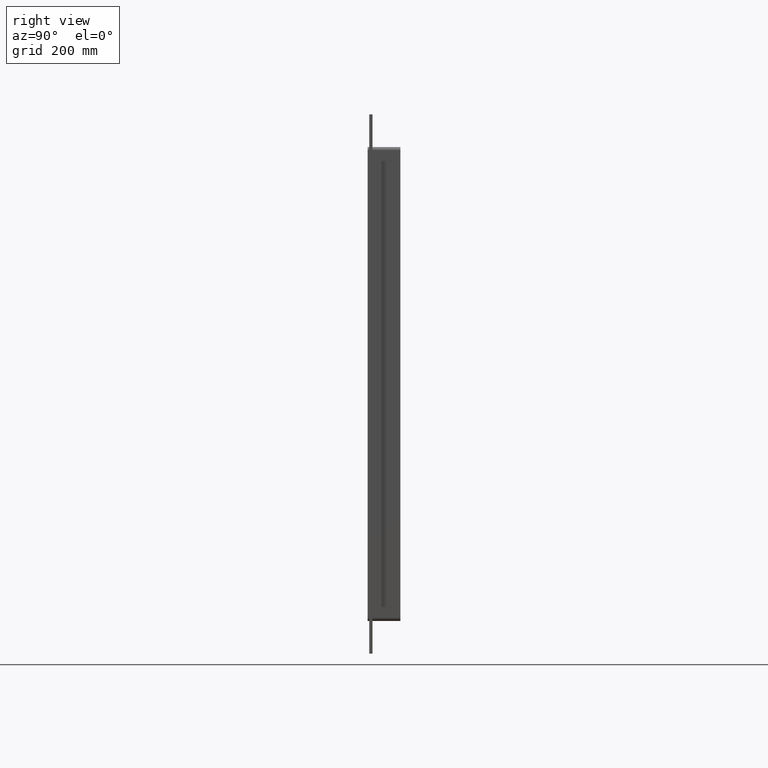
[diagram: clean part render]
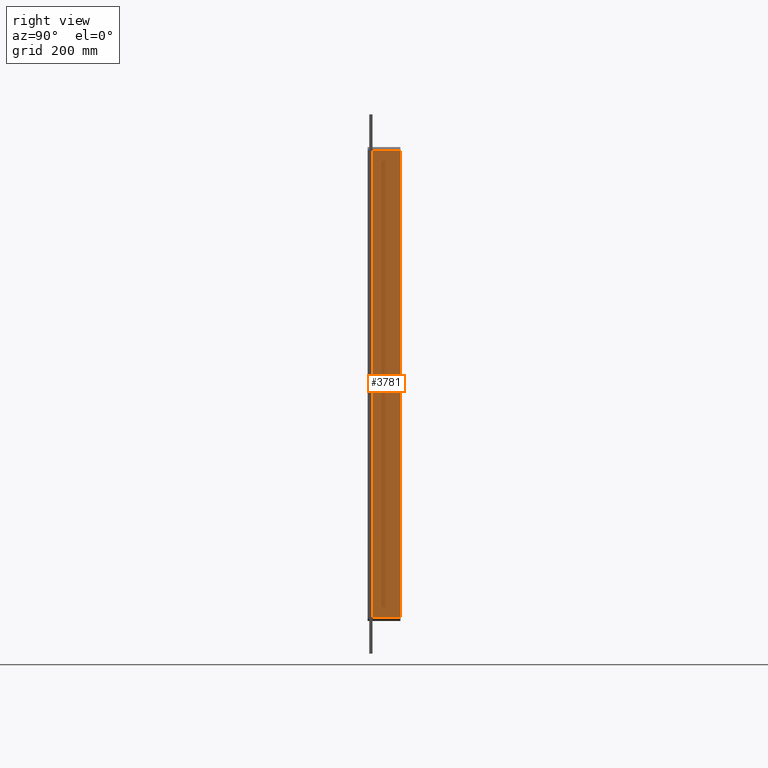
[diagram: same view with one face highlighted and labeled with its STEP entity id]
A machine part, right view. The second image highlights one B-rep face of the part: STEP entity #3781.
In plain terms, the highlighted planar face has unit normal (1, 0, 0).
Its self-contained STEP definition (entity closure, byte-faithful):
#1605=CARTESIAN_POINT('',(392.50000000000011,57.0,-429.0));
#1606=VERTEX_POINT('',#1605);
#1656=CARTESIAN_POINT('',(392.50000000000011,57.0,429.00000000000006));
#1657=VERTEX_POINT('',#1656);
#1665=CARTESIAN_POINT('',(392.50000000000011,57.0,429.00000000000006));
#1666=DIRECTION('',(0.0,0.0,-1.0));
#1667=VECTOR('',#1666,858.0);
#1668=LINE('',#1665,#1667);
#1669=EDGE_CURVE('',#1657,#1606,#1668,.T.);
#3396=CARTESIAN_POINT('',(392.50000000000011,6.000000000000001,-429.00000000000006));
#3397=VERTEX_POINT('',#3396);
#3405=CARTESIAN_POINT('',(392.50000000000011,6.000000000000001,429.00000000000006));
#3406=VERTEX_POINT('',#3405);
#3407=CARTESIAN_POINT('',(392.50000000000011,6.000000000000001,429.00000000000006));
#3408=DIRECTION('',(0.0,0.0,-1.0));
#3409=VECTOR('',#3408,858.0);
#3410=LINE('',#3407,#3409);
#3411=EDGE_CURVE('',#3406,#3397,#3410,.T.);
#3732=CARTESIAN_POINT('',(392.50000000000011,6.000000000000001,429.00000000000006));
#3733=DIRECTION('',(0.0,1.0,0.0));
#3734=VECTOR('',#3733,51.0);
#3735=LINE('',#3732,#3734);
#3736=EDGE_CURVE('',#3406,#1657,#3735,.T.);
#3765=CARTESIAN_POINT('',(392.50000000000011,0.0,435.00000000000006));
#3766=DIRECTION('',(1.0,0.0,0.0));
#3767=DIRECTION('',(0.0,0.0,-1.0));
#3768=AXIS2_PLACEMENT_3D('',#3765,#3766,#3767);
#3769=PLANE('',#3768);
#3770=ORIENTED_EDGE('',*,*,#3411,.T.);
#3771=CARTESIAN_POINT('',(392.50000000000011,57.0,-429.00000000000006));
#3772=DIRECTION('',(0.0,-1.0,0.0));
#3773=VECTOR('',#3772,51.0);
#3774=LINE('',#3771,#3773);
#3775=EDGE_CURVE('',#1606,#3397,#3774,.T.);
#3776=ORIENTED_EDGE('',*,*,#3775,.F.);
#3777=ORIENTED_EDGE('',*,*,#1669,.F.);
#3778=ORIENTED_EDGE('',*,*,#3736,.F.);
#3779=EDGE_LOOP('',(#3770,#3776,#3777,#3778));
#3780=FACE_OUTER_BOUND('',#3779,.T.);
#3781=ADVANCED_FACE('',(#3780),#3769,.T.);